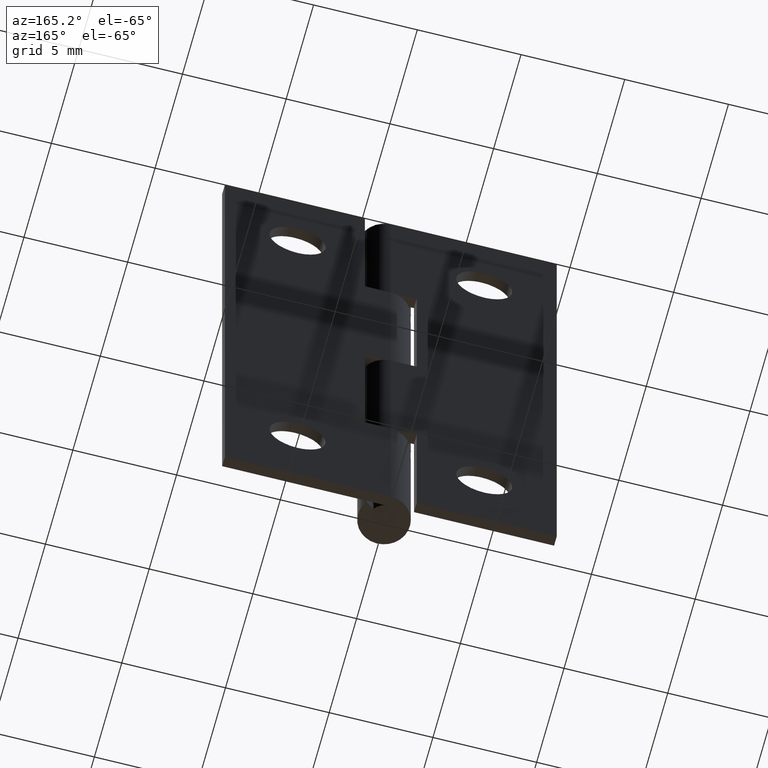
[diagram: clean part render]
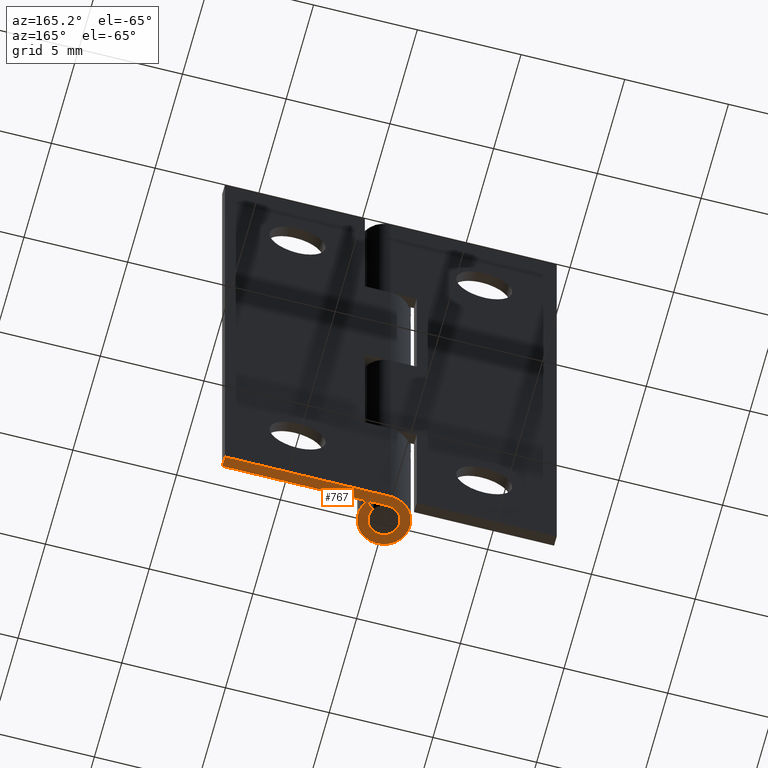
[diagram: same view with one face highlighted and labeled with its STEP entity id]
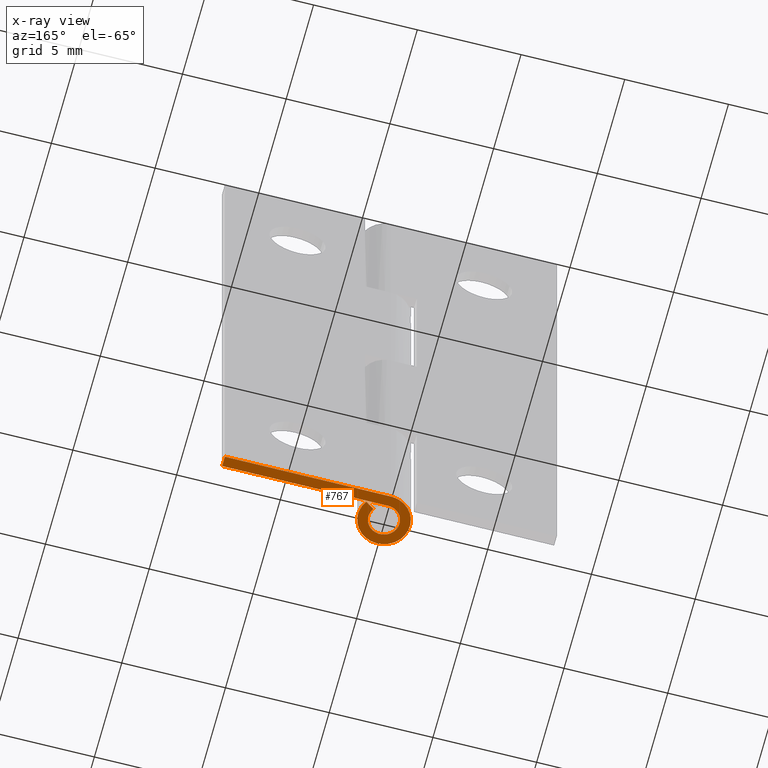
[diagram: x-ray of the same camera — body ghosted, the highlighted face saturated]
A machine part, auxiliary view. The second image highlights one B-rep face of the part: STEP entity #767.
The next image is the same camera in x-ray: the body ghosted, the highlighted face saturated — about 0% of this face is hidden behind the body in this view.
In plain terms, the highlighted face is a freeform B-spline surface patch.
Its self-contained STEP definition (entity closure, byte-faithful):
#690=CARTESIAN_POINT('',(-1.711754991209247,-1.373745160584168,0.0));
#691=CARTESIAN_POINT('',(8.462024291035473,-1.373745160584168,0.0));
#692=CARTESIAN_POINT('',(-1.711754991209247,1.374821311778758,0.0));
#693=CARTESIAN_POINT('',(8.462024291035474,1.374821311778758,0.0));
#694=B_SPLINE_SURFACE_WITH_KNOTS('',1,1,((#690,#692),(#691,#693)),.UNSPECIFIED.,.F.,.F.,.U.,(2,2),(2,2),(0.0,10.173779282244720),(0.0,2.748566472362926),.UNSPECIFIED.);
#695=CARTESIAN_POINT('',(-2.296137E-016,1.250000000000000,0.0));
#696=VERTEX_POINT('',#695);
#697=CARTESIAN_POINT('',(8.0,1.250000000000000,0.0));
#698=VERTEX_POINT('',#697);
#699=CARTESIAN_POINT('',(-2.296137E-016,1.250000000000000,0.0));
#700=CARTESIAN_POINT('',(8.0,1.250000000000000,0.0));
#701=QUASI_UNIFORM_CURVE('',1,(#699,#700),.UNSPECIFIED.,.F.,.U.);
#702=EDGE_CURVE('',#696,#698,#701,.T.);
#703=ORIENTED_EDGE('',*,*,#702,.T.);
#704=CARTESIAN_POINT('',(8.0,0.750000000000000,0.0));
#705=VERTEX_POINT('',#704);
#706=CARTESIAN_POINT('',(8.0,1.250000000000000,0.0));
#707=CARTESIAN_POINT('',(8.0,0.750000000000000,0.0));
#708=QUASI_UNIFORM_CURVE('',1,(#706,#707),.UNSPECIFIED.,.F.,.U.);
#709=EDGE_CURVE('',#698,#705,#708,.T.);
#710=ORIENTED_EDGE('',*,*,#709,.T.);
#711=CARTESIAN_POINT('',(0.0,0.750000000000000,0.0));
#712=VERTEX_POINT('',#711);
#713=CARTESIAN_POINT('',(8.0,0.750000000000000,0.0));
#714=CARTESIAN_POINT('',(0.0,0.750000000000000,0.0));
#715=QUASI_UNIFORM_CURVE('',1,(#713,#714),.UNSPECIFIED.,.F.,.U.);
#716=EDGE_CURVE('',#705,#712,#715,.T.);
#717=ORIENTED_EDGE('',*,*,#716,.T.);
#718=CARTESIAN_POINT('',(0.622047767224568,0.418994719884307,0.0));
#719=VERTEX_POINT('',#718);
#720=CARTESIAN_POINT('',(0.622047767224568,0.418994719884307,0.0));
#721=CARTESIAN_POINT('',(0.949348080480182,-0.066921735408431,0.0));
#722=CARTESIAN_POINT('',(0.557116497158057,-0.502116728056671,0.0));
#723=CARTESIAN_POINT('',(0.164884913835931,-0.937311720704911,0.0));
#724=CARTESIAN_POINT('',(-0.352316590644529,-0.662097439926039,0.0));
#725=CARTESIAN_POINT('',(-0.869518095124990,-0.386883159147168,0.0));
#726=CARTESIAN_POINT('',(-0.727692613657899,0.181558420426416,0.0));
#727=CARTESIAN_POINT('',(-0.585867132190809,0.750000000000000,0.0));
#728=CARTESIAN_POINT('',(0.0,0.750000000000000,0.0));
#736=(BOUNDED_CURVE()B_SPLINE_CURVE(2,(#720,#721,#722,#723,#724,#725,#726,#727,#728),.UNSPECIFIED.,.F.,.U.)B_SPLINE_CURVE_WITH_KNOTS((3,2,2,2,3),(0.0,0.250000000000000,0.500000000000000,0.750000000000000,1.0),.UNSPECIFIED.)CURVE()GEOMETRIC_REPRESENTATION_ITEM()RATIONAL_B_SPLINE_CURVE((1.0,0.788060243224428,1.0,0.788060243224428,1.0,0.788060243224428,1.0,0.788060243224428,1.0))REPRESENTATION_ITEM(''));
#737=EDGE_CURVE('',#719,#712,#736,.T.);
#738=ORIENTED_EDGE('',*,*,#737,.F.);
#739=CARTESIAN_POINT('',(1.036746278707614,0.698324533140512,0.0));
#740=VERTEX_POINT('',#739);
#741=CARTESIAN_POINT('',(0.622047767224568,0.418994719884307,0.0));
#742=CARTESIAN_POINT('',(1.036746278707614,0.698324533140512,0.0));
#743=QUASI_UNIFORM_CURVE('',1,(#741,#742),.UNSPECIFIED.,.F.,.U.);
#744=EDGE_CURVE('',#719,#740,#743,.T.);
#745=ORIENTED_EDGE('',*,*,#744,.T.);
#746=CARTESIAN_POINT('',(1.036746278707614,0.698324533140513,0.0));
#747=CARTESIAN_POINT('',(1.582246800800305,-0.111536225680718,0.0));
#748=CARTESIAN_POINT('',(0.928527495263428,-0.836861213427785,0.0));
#749=CARTESIAN_POINT('',(0.274808189726552,-1.562186201174850,0.0));
#750=CARTESIAN_POINT('',(-0.587194317740881,-1.103495733210066,0.0));
#751=CARTESIAN_POINT('',(-1.449196825208317,-0.644805265245280,0.0));
#752=CARTESIAN_POINT('',(-1.212821022763166,0.302597367377361,0.0));
#753=CARTESIAN_POINT('',(-0.976445220318015,1.250000000000000,0.0));
#754=CARTESIAN_POINT('',(0.0,1.250000000000000,0.0));
#762=(BOUNDED_CURVE()B_SPLINE_CURVE(2,(#746,#747,#748,#749,#750,#751,#752,#753,#754),.UNSPECIFIED.,.F.,.U.)B_SPLINE_CURVE_WITH_KNOTS((3,2,2,2,3),(0.0,0.250000000000000,0.500000000000000,0.750000000000000,1.0),.UNSPECIFIED.)CURVE()GEOMETRIC_REPRESENTATION_ITEM()RATIONAL_B_SPLINE_CURVE((1.0,0.788060243224427,1.0,0.788060243224427,1.0,0.788060243224427,1.0,0.788060243224427,1.0))REPRESENTATION_ITEM(''));
#763=EDGE_CURVE('',#740,#696,#762,.T.);
#764=ORIENTED_EDGE('',*,*,#763,.T.);
#765=EDGE_LOOP('',(#703,#710,#717,#738,#745,#764));
#766=FACE_OUTER_BOUND('',#765,.T.);
#767=ADVANCED_FACE('',(#766),#694,.F.);